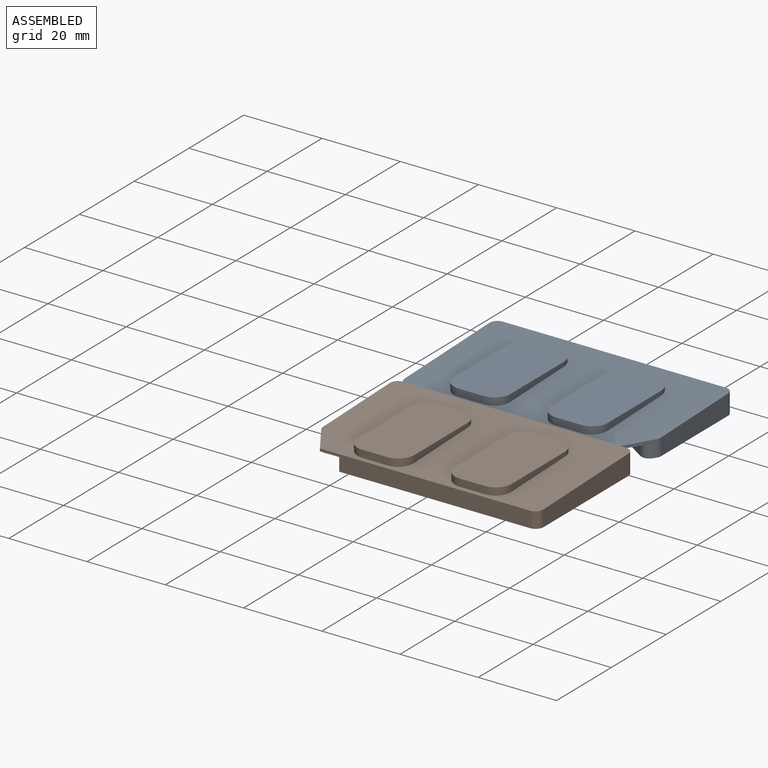
[diagram: assembled view]
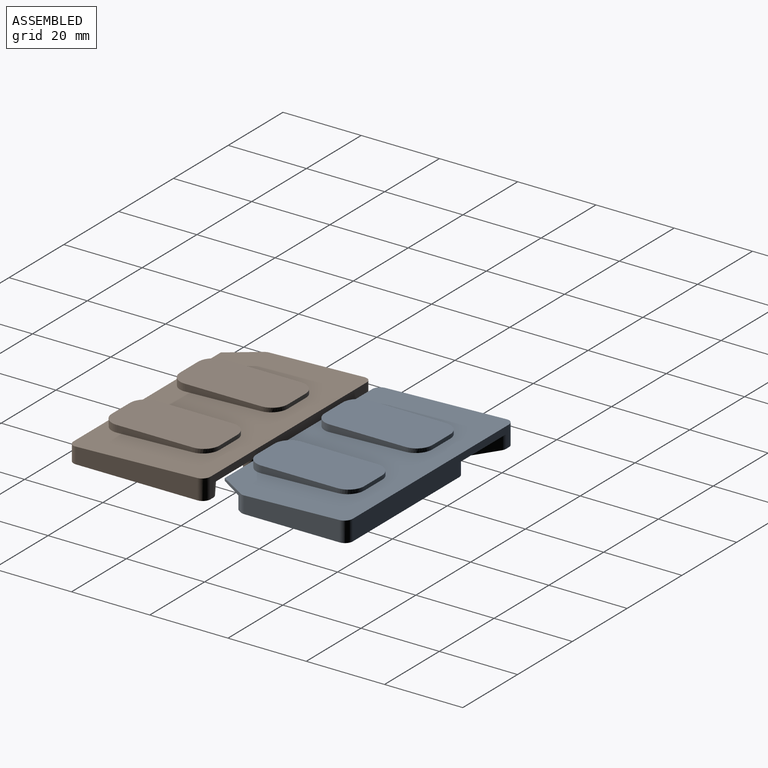
[diagram: assembled view, second angle]
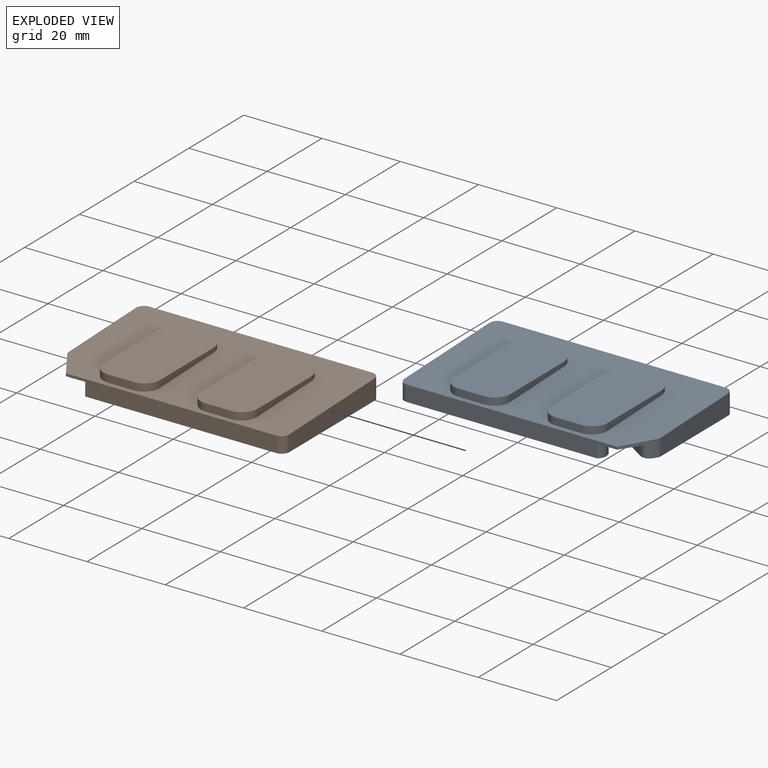
[diagram: exploded view]
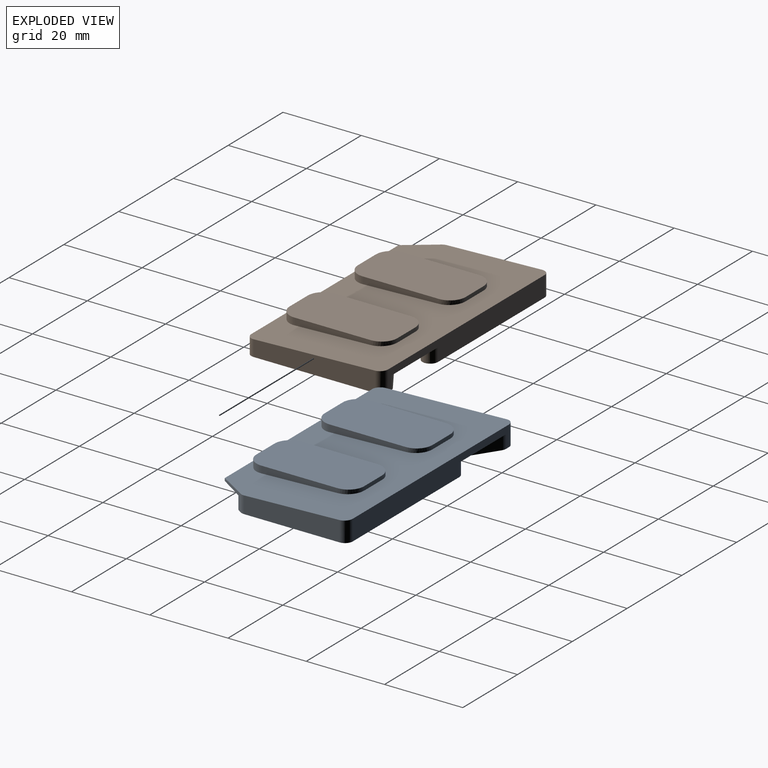
[diagram: exploded view, second angle]
ASSEMBLY  parts=2 mates=2
PART A: 37 faces, bbox 6.1x35x61 mm
  f0: plane 7.5x4.92mm, normal (0,-0.55,0.84), area 10.1mm2, adj f3,f5,f10,f11,f30,f34
  f1: plane 57x5.22mm, normal (0,1,0), area 240mm2, adj f5,f6,f10,f11,f31,f32,f35,f36
  f2: plane 31x5.16mm, normal (0,0,-1), area 143.5mm2, adj f6,f11,f33,f36
  f3: plane 53.75x4.03mm, normal (0,-1,0), area 199.9mm2, adj f0,f6,f8,f10,f11,f33
  f4: plane 24.4x5.16mm, normal (0,0,1), area 115.7mm2, adj f5,f11,f34,f35
  f5: plane 42.86x29.17mm, normal (1,0,0), area 727.9mm2, adj f0,f1,f4,f7,f30,f31,f34,f35
  f6: plane 51.59x35mm, normal (1,0,0), area 1047.5mm2, adj f1,f2,f3,f8,f9,f32,f33,f36
  f7: plane 38.36x25.17mm, normal (0,-0.84,-0.55), area 154.8mm2, adj f5,f10,f30,f31
  f8: cylinder r=2.8mm len=4.34mm, axis (-1,0,0), area 16.9mm2, adj f3,f6,f9,f10
  f9: plane 46.22x30.33mm, normal (0,0.84,0.55), area 186.6mm2, adj f6,f8,f10,f32
  f10: plane 57.16x35mm, normal (1,0,0), area 336mm2, adj f0,f1,f3,f7,f8,f9,f30,f31
  f11: plane 61.02x35.02mm, normal (-1,-0.03,0), area 1342.5mm2, adj f0,f1,f2,f3,f4,f12,f13,f14
  f12: cylinder r=4mm len=4.04mm, axis (1,0.02,0), area 11.8mm2, adj f11,f13,f19,f28
  f13: plane 6.5x1.93mm, normal (0.02,-1,0), area 12.5mm2, adj f11,f12,f14,f28
  f14: cylinder r=4mm len=4.04mm, axis (1,0.02,0), area 11.8mm2, adj f11,f13,f15,f28
  f15: plane 19.53x1.79mm, normal (0,0,-1), area 28.5mm2, adj f11,f14,f16,f28
  f16: cylinder r=4mm len=4.02mm, axis (1,0.02,0), area 6.6mm2, adj f11,f15,f17,f28
  f17: plane 6.5x0.99mm, normal (-0.02,1,0), area 6.4mm2, adj f11,f16,f18,f28
  f18: cylinder r=4mm len=4.02mm, axis (1,0.02,0), area 6.6mm2, adj f11,f17,f19,f28
  f19: plane 19.53x1.79mm, normal (0,0,1), area 28.5mm2, adj f11,f12,f18,f28
  f20: plane 6.5x1.93mm, normal (0.02,-1,0), area 12.5mm2, adj f11,f21,f22,f29
  f21: cylinder r=4mm len=4.04mm, axis (1,0.02,0), area 11.8mm2, adj f11,f20,f24,f29
  f22: cylinder r=4mm len=4.04mm, axis (1,0.02,0), area 11.8mm2, adj f11,f20,f23,f29
  f23: plane 19.53x1.79mm, normal (0,0,-1), area 28.5mm2, adj f11,f22,f26,f29
  f24: plane 19.53x1.79mm, normal (0,0,1), area 28.5mm2, adj f11,f21,f25,f29
  f25: cylinder r=4mm len=4.02mm, axis (1,0.02,0), area 6.6mm2, adj f11,f24,f27,f29
  f26: cylinder r=4mm len=4.02mm, axis (1,0.02,0), area 6.6mm2, adj f11,f23,f27,f29
  f27: plane 6.5x0.99mm, normal (-0.02,1,0), area 6.4mm2, adj f11,f25,f26,f29
  f28: plane 27.51x14.5mm, normal (-1,0,0), area 385.1mm2, adj f12,f13,f14,f15,f16,f17,f18,f19
  f29: plane 27.51x14.5mm, normal (-1,0,0), area 385.1mm2, adj f20,f21,f22,f23,f24,f25,f26,f27
  f30: cylinder r=2mm len=3.38mm, axis (1,0,0), area 10.6mm2, adj f0,f5,f7,f10
  f31: cylinder r=2mm len=3.67mm, axis (-1,0,0), area 17.3mm2, adj f1,f5,f7,f10
  f32: cylinder r=2mm len=3.38mm, axis (1,0,0), area 3.9mm2, adj f1,f6,f9,f10
  f33: cylinder r=2mm len=4.1mm, axis (-1,0,0), area 12.7mm2, adj f2,f3,f6,f11
  f34: cylinder r=2mm len=4.33mm, axis (1,0,0), area 5mm2, adj f0,f4,f5,f11
  f35: cylinder r=2mm len=5.22mm, axis (-1,0,0), area 16.3mm2, adj f1,f4,f5,f11
  f36: cylinder r=2mm len=5.22mm, axis (1,0,0), area 16.3mm2, adj f1,f2,f6,f11
PART B: 37 faces, bbox 6.1x35x61 mm
  f0: plane 7.5x4.92mm, normal (0,-0.55,0.84), area 10.1mm2, adj f3,f5,f10,f11,f30,f34
  f1: plane 57x5.22mm, normal (0,1,0), area 240mm2, adj f5,f6,f10,f11,f31,f32,f35,f36
  f2: plane 31x5.16mm, normal (0,0,-1), area 143.5mm2, adj f6,f11,f33,f36
  f3: plane 53.75x4.03mm, normal (0,-1,0), area 199.9mm2, adj f0,f6,f8,f10,f11,f33
  f4: plane 24.4x5.16mm, normal (0,0,1), area 115.7mm2, adj f5,f11,f34,f35
  f5: plane 42.86x29.17mm, normal (-1,0,0), area 727.9mm2, adj f0,f1,f4,f7,f30,f31,f34,f35
  f6: plane 51.59x35mm, normal (-1,0,0), area 1047.5mm2, adj f1,f2,f3,f8,f9,f32,f33,f36
  f7: plane 38.36x25.17mm, normal (0,-0.84,-0.55), area 154.8mm2, adj f5,f10,f30,f31
  f8: cylinder r=2.8mm len=4.34mm, axis (1,0,0), area 16.9mm2, adj f3,f6,f9,f10
  f9: plane 46.22x30.33mm, normal (0,0.84,0.55), area 186.6mm2, adj f6,f8,f10,f32
  f10: plane 57.16x35mm, normal (-1,0,0), area 336mm2, adj f0,f1,f3,f7,f8,f9,f30,f31
  f11: plane 61.02x35.02mm, normal (1,-0.03,0), area 1342.5mm2, adj f0,f1,f2,f3,f4,f12,f13,f14
  f12: cylinder r=4mm len=4.04mm, axis (-1,0.02,0), area 11.8mm2, adj f11,f13,f19,f28
  f13: plane 6.5x1.93mm, normal (-0.02,-1,0), area 12.5mm2, adj f11,f12,f14,f28
  f14: cylinder r=4mm len=4.04mm, axis (-1,0.02,0), area 11.8mm2, adj f11,f13,f15,f28
  f15: plane 19.53x1.79mm, normal (0,0,-1), area 28.5mm2, adj f11,f14,f16,f28
  f16: cylinder r=4mm len=4.02mm, axis (-1,0.02,0), area 6.6mm2, adj f11,f15,f17,f28
  f17: plane 6.5x0.99mm, normal (0.02,1,0), area 6.4mm2, adj f11,f16,f18,f28
  f18: cylinder r=4mm len=4.02mm, axis (-1,0.02,0), area 6.6mm2, adj f11,f17,f19,f28
  f19: plane 19.53x1.79mm, normal (0,0,1), area 28.5mm2, adj f11,f12,f18,f28
  f20: plane 6.5x1.93mm, normal (-0.02,-1,0), area 12.5mm2, adj f11,f21,f22,f29
  f21: cylinder r=4mm len=4.04mm, axis (-1,0.02,0), area 11.8mm2, adj f11,f20,f24,f29
  f22: cylinder r=4mm len=4.04mm, axis (-1,0.02,0), area 11.8mm2, adj f11,f20,f23,f29
  f23: plane 19.53x1.79mm, normal (0,0,-1), area 28.5mm2, adj f11,f22,f26,f29
  f24: plane 19.53x1.79mm, normal (0,0,1), area 28.5mm2, adj f11,f21,f25,f29
  f25: cylinder r=4mm len=4.02mm, axis (-1,0.02,0), area 6.6mm2, adj f11,f24,f27,f29
  f26: cylinder r=4mm len=4.02mm, axis (-1,0.02,0), area 6.6mm2, adj f11,f23,f27,f29
  f27: plane 6.5x0.99mm, normal (0.02,1,0), area 6.4mm2, adj f11,f25,f26,f29
  f28: plane 27.51x14.5mm, normal (1,0,0), area 385.1mm2, adj f12,f13,f14,f15,f16,f17,f18,f19
  f29: plane 27.51x14.5mm, normal (1,0,0), area 385.1mm2, adj f20,f21,f22,f23,f24,f25,f26,f27
  f30: cylinder r=2mm len=3.38mm, axis (-1,0,0), area 10.6mm2, adj f0,f5,f7,f10
  f31: cylinder r=2mm len=3.67mm, axis (1,0,0), area 17.3mm2, adj f1,f5,f7,f10
  f32: cylinder r=2mm len=3.38mm, axis (-1,0,0), area 3.9mm2, adj f1,f6,f9,f10
  f33: cylinder r=2mm len=4.1mm, axis (1,0,0), area 12.7mm2, adj f2,f3,f6,f11
  f34: cylinder r=2mm len=4.33mm, axis (-1,0,0), area 5mm2, adj f0,f4,f5,f11
  f35: cylinder r=2mm len=5.22mm, axis (1,0,0), area 16.3mm2, adj f1,f4,f5,f11
  f36: cylinder r=2mm len=5.22mm, axis (-1,0,0), area 16.3mm2, adj f1,f2,f6,f11
PLACE A rot(axis=(0,1,0),90deg) t=(-39.93,-5.33,-0.16)mm
PLACE B rot(axis=(0,-1,0),90deg) t=(39.42,-41.7,-0.16)mm
MATE planar A.f2 <-> B.f4  axis (-1,0,0) through (-30.75,18.76,2.16)mm
MATE planar B.f6 <-> A.f6  axis (0,0,-1) through (11.5,-23.24,-0.16)mm
